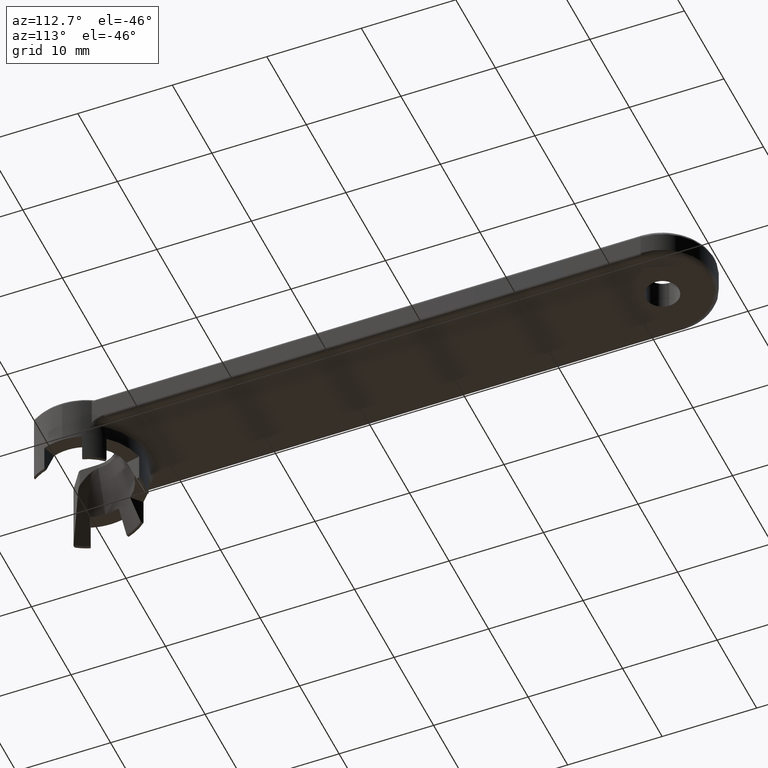
[diagram: clean part render]
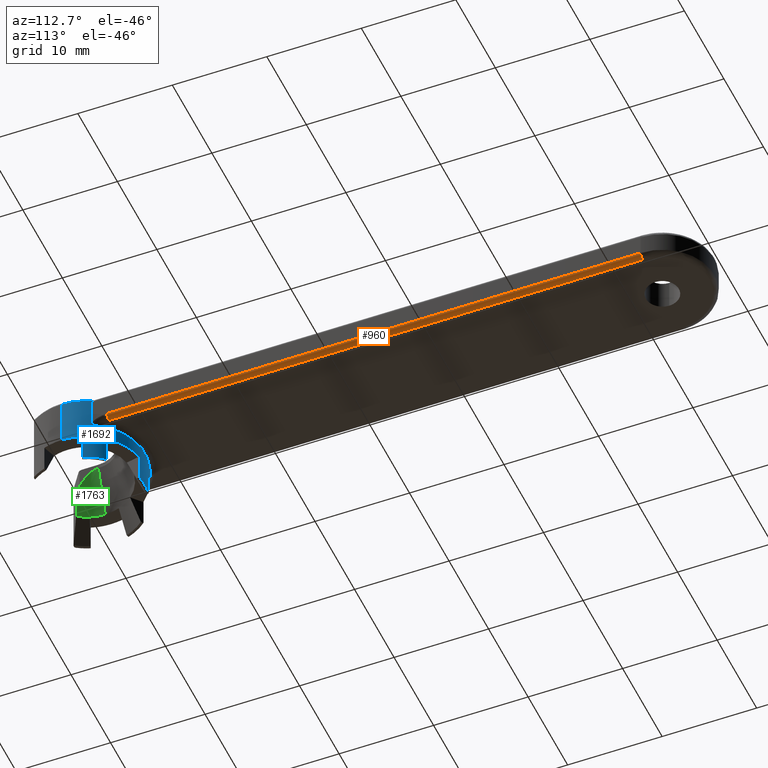
[diagram: same view with three faces highlighted in distinct colors, each labeled with its STEP entity id]
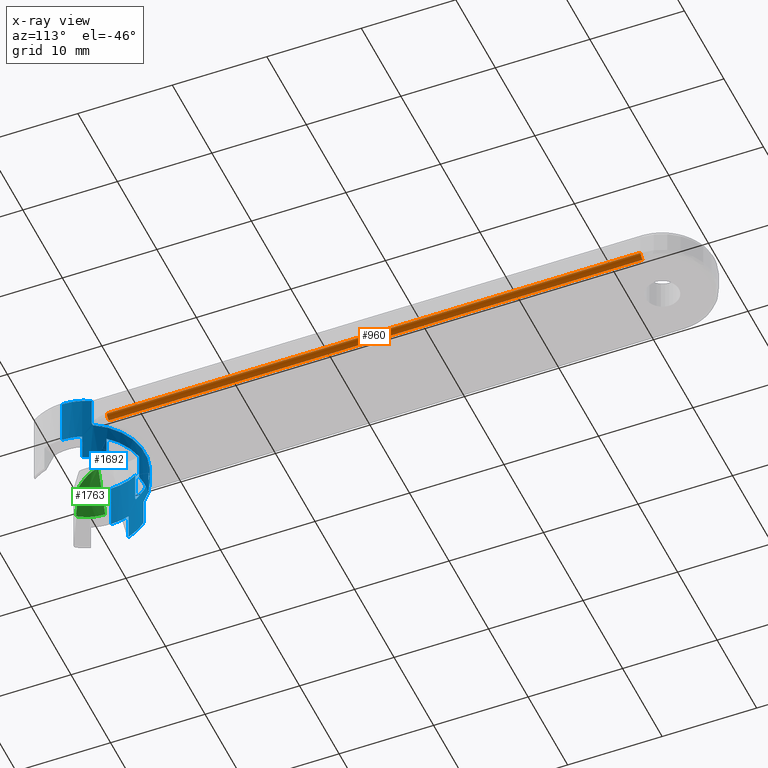
[diagram: x-ray of the same camera — body ghosted, the three highlighted faces saturated]
A machine part, auxiliary view with three faces highlighted in distinct colors.
The next image is the same camera in x-ray (body ghosted, the three faces saturated) — at least one of them is partly hidden behind the body in this view.
Their STEP definitions:

[orange] entity #960 — the highlighted cylindrical surface (edge-blend (fillet) strip) has radius 0.5 mm, axis along (-0, -1, 0).
#144 = LINE ( 'NONE', #1535, #1511 ) ;
#340 = EDGE_CURVE ( 'NONE', #1718, #515, #1353, .T. ) ;
#377 = LINE ( 'NONE', #965, #2223 ) ;
#440 = CIRCLE ( 'NONE', #680, 0.5000000000076151300 ) ;
#471 = EDGE_LOOP ( 'NONE', ( #2197, #1680, #1442, #1510 ) ) ;
#515 = VERTEX_POINT ( 'NONE', #563 ) ;
#522 = DIRECTION ( 'NONE',  ( -1.030765905720560100E-010, -0.9999999999999920100, -1.267852253730563900E-007 ) ) ;
#524 = AXIS2_PLACEMENT_3D ( 'NONE', #2038, #718, #1784 ) ;
#563 = CARTESIAN_POINT ( 'NONE',  ( 5.000000000201823400, 60.94382610750119500, -3.200000000066548300 ) ) ;
#631 = AXIS2_PLACEMENT_3D ( 'NONE', #1528, #1010, #1890 ) ;
#661 = DIRECTION ( 'NONE',  ( 0.0000000000000000000, 1.000000000000000000, 0.0000000000000000000 ) ) ;
#680 = AXIS2_PLACEMENT_3D ( 'NONE', #1589, #522, #1775 ) ;
#707 = EDGE_CURVE ( 'NONE', #1938, #515, #377, .T. ) ;
#718 = DIRECTION ( 'NONE',  ( -6.938893903907228400E-015, -1.000000000000000000, 0.0000000000000000000 ) ) ;
#790 = CARTESIAN_POINT ( 'NONE',  ( 5.500000000000000000, 60.94382609499999100, -2.700000000405793800 ) ) ;
#960 = ADVANCED_FACE ( 'NONE', ( #1355 ), #2187, .T. ) ;
#962 = CARTESIAN_POINT ( 'NONE',  ( 5.000000023561114800, 4.459820554860453300, -3.199999999912545200 ) ) ;
#965 = CARTESIAN_POINT ( 'NONE',  ( 5.000000000000000000, 35.20182335899998800, -3.200000000000000200 ) ) ;
#1010 = DIRECTION ( 'NONE',  ( -0.0000000000000000000, 1.000000000000000000, -0.0000000000000000000 ) ) ;
#1353 = CIRCLE ( 'NONE', #631, 0.5000000000000000000 ) ;
#1355 = FACE_OUTER_BOUND ( 'NONE', #471, .T. ) ;
#1442 = ORIENTED_EDGE ( 'NONE', *, *, #707, .T. ) ;
#1510 = ORIENTED_EDGE ( 'NONE', *, *, #340, .F. ) ;
#1511 = VECTOR ( 'NONE', #661, 1000.000000000000000 ) ;
#1528 = CARTESIAN_POINT ( 'NONE',  ( 5.000000000000000000, 60.94382609499999100, -2.700000000000000200 ) ) ;
#1535 = CARTESIAN_POINT ( 'NONE',  ( 5.500000000000000000, 31.90282184949999700, -2.700000000541058500 ) ) ;
#1551 = EDGE_CURVE ( 'NONE', #1938, #1684, #440, .T. ) ;
#1589 = CARTESIAN_POINT ( 'NONE',  ( 4.999999999983588200, 4.459820337675675500, -2.700000000000043300 ) ) ;
#1680 = ORIENTED_EDGE ( 'NONE', *, *, #1551, .F. ) ;
#1684 = VERTEX_POINT ( 'NONE', #1845 ) ;
#1718 = VERTEX_POINT ( 'NONE', #790 ) ;
#1725 = EDGE_CURVE ( 'NONE', #1684, #1718, #144, .T. ) ;
#1775 = DIRECTION ( 'NONE',  ( 0.0000000000000000000, 1.267852246780839900E-007, -0.9999999999999920100 ) ) ;
#1784 = DIRECTION ( 'NONE',  ( 1.000000000000000000, -1.387778780781446900E-014, 0.0000000000000000000 ) ) ;
#1840 = DIRECTION ( 'NONE',  ( 0.0000000000000000000, 1.000000000000000000, 0.0000000000000000000 ) ) ;
#1845 = CARTESIAN_POINT ( 'NONE',  ( 5.499999999997800000, 4.459820490492979200, -2.700000000270550900 ) ) ;
#1890 = DIRECTION ( 'NONE',  ( 1.734723475976807100E-015, 0.0000000000000000000, -1.000000000000000000 ) ) ;
#1938 = VERTEX_POINT ( 'NONE', #962 ) ;
#2038 = CARTESIAN_POINT ( 'NONE',  ( 5.000000000000000000, 60.94382609499999100, -2.700000000000000200 ) ) ;
#2187 = CYLINDRICAL_SURFACE ( 'NONE', #524, 0.4999999999999995600 ) ;
#2197 = ORIENTED_EDGE ( 'NONE', *, *, #1725, .F. ) ;
#2223 = VECTOR ( 'NONE', #1840, 1000.000000000000000 ) ;

[blue] entity #1692 — the highlighted cylindrical surface (partial cylindrical patch) has radius 6.2 mm, axis along (0, -0, 1).
#3 = VECTOR ( 'NONE', #351, 1000.000000000000000 ) ;
#5 = CARTESIAN_POINT ( 'NONE',  ( -5.867826876618650500, 2.002150780044259700, -8.199999999999999300 ) ) ;
#14 = CARTESIAN_POINT ( 'NONE',  ( 5.446663142184594800, 2.962128852904959900, -3.683700694709912200 ) ) ;
#22 = ORIENTED_EDGE ( 'NONE', *, *, #883, .F. ) ;
#26 = DIRECTION ( 'NONE',  ( 1.000000000000000000, 0.0000000000000000000, 0.0000000000000000000 ) ) ;
#30 = CARTESIAN_POINT ( 'NONE',  ( -5.500000000627586900, 2.861817603889728300, -0.4244531496748381600 ) ) ;
#43 = CARTESIAN_POINT ( 'NONE',  ( -1.200000001460044500, 6.082762530010184900, -8.199999999999999300 ) ) ;
#44 = CARTESIAN_POINT ( 'NONE',  ( -5.438596824998390900, 2.976855604779078800, -3.700000077557491300 ) ) ;
#50 = CARTESIAN_POINT ( 'NONE',  ( -6.200000000000001100, 7.592810154713590800E-016, -8.199999999999999300 ) ) ;
#55 = AXIS2_PLACEMENT_3D ( 'NONE', #601, #1847, #784 ) ;
#56 = CARTESIAN_POINT ( 'NONE',  ( -5.458067962721095500, 2.941017725381117800, -3.654296403955475300 ) ) ;
#81 = CARTESIAN_POINT ( 'NONE',  ( 1.204458524986711500, 6.081881260069686800, -4.249999999999999100 ) ) ;
#82 = EDGE_CURVE ( 'NONE', #922, #1838, #1689, .T. ) ;
#85 = CARTESIAN_POINT ( 'NONE',  ( 4.667826877783794800, 4.080611748137672900, -4.249999999999999100 ) ) ;
#110 = CARTESIAN_POINT ( 'NONE',  ( -5.495980475650266200, 2.869604164179492900, -3.481033230296161700 ) ) ;
#121 = CARTESIAN_POINT ( 'NONE',  ( 5.494223422560828000, 2.872992808981826400, -3.479741586261986700 ) ) ;
#127 = ORIENTED_EDGE ( 'NONE', *, *, #1484, .F. ) ;
#150 = CARTESIAN_POINT ( 'NONE',  ( 5.438596824754166700, 2.976855605225269500, -3.700000077557490800 ) ) ;
#166 = CARTESIAN_POINT ( 'NONE',  ( 0.0000000000000000000, 0.0000000000000000000, -3.700000001299996700 ) ) ;
#193 = B_SPLINE_CURVE_WITH_KNOTS ( 'NONE', 3,
 ( #1513, #1266, #1494, #1854 ),
 .UNSPECIFIED., .F., .F.,
 ( 4, 4 ),
 ( 1.626303258728256700E-019, 0.0002237948777926737600 ),
 .UNSPECIFIED. ) ;
#198 = LINE ( 'NONE', #50, #1925 ) ;
#204 = ORIENTED_EDGE ( 'NONE', *, *, #881, .F. ) ;
#214 = AXIS2_PLACEMENT_3D ( 'NONE', #166, #1767, #840 ) ;
#223 = CARTESIAN_POINT ( 'NONE',  ( 5.484822456379121500, 2.890818314135780800, -3.548926660602370400 ) ) ;
#235 = AXIS2_PLACEMENT_3D ( 'NONE', #1851, #789, #2034 ) ;
#244 = VERTEX_POINT ( 'NONE', #894 ) ;
#249 = EDGE_CURVE ( 'NONE', #1647, #1398, #1032, .T. ) ;
#251 = CARTESIAN_POINT ( 'NONE',  ( -5.464439879632300800, 2.929148316300492100, -3.634817122630300500 ) ) ;
#258 = LINE ( 'NONE', #1736, #316 ) ;
#261 = CARTESIAN_POINT ( 'NONE',  ( -5.458257569519413500, 2.940650316093169200, -0.2999999999853709100 ) ) ;
#286 = DIRECTION ( 'NONE',  ( -0.0000000000000000000, -0.0000000000000000000, -1.000000000000000000 ) ) ;
#295 = DIRECTION ( 'NONE',  ( 0.0000000000000000000, -0.0000000000000000000, 1.000000000000000000 ) ) ;
#301 = VECTOR ( 'NONE', #286, 1000.000000000000000 ) ;
#306 = CARTESIAN_POINT ( 'NONE',  ( -5.500000012472471900, 2.861817518264829100, -3.355874765797170600 ) ) ;
#316 = VECTOR ( 'NONE', #2076, 1000.000000000000000 ) ;
#324 = FACE_OUTER_BOUND ( 'NONE', #2213, .T. ) ;
#328 = CARTESIAN_POINT ( 'NONE',  ( 5.438596824754166700, 2.976855605225269500, -3.700000077557490800 ) ) ;
#339 = CARTESIAN_POINT ( 'NONE',  ( 0.0000000000000000000, 0.0000000000000000000, -8.199999999999999300 ) ) ;
#341 = B_SPLINE_CURVE_WITH_KNOTS ( 'NONE', 3,
 ( #1325, #2035, #2220, #1146, #56, #1335, #251, #1493, #434, #1683, #618, #1860, #801, #2044, #974, #2227, #1798, #2261, #1194, #110, #1373, #306 ),
 .UNSPECIFIED., .F., .F.,
 ( 4, 2, 1, 1, 2, 2, 2, 2, 2, 2, 2, 4 ),
 ( 0.0000000000000000000, 0.1250000000000123800, 0.1875000000000185700, 0.2187500000000217300, 0.2343750000000237000, 0.2500000000000257000, 0.3750000000000487400, 0.4375000000000584500, 0.4687500000000656100, 0.4843750000000666700, 0.5000000000000677200, 1.000000000000000000 ),
 .UNSPECIFIED. ) ;
#351 = DIRECTION ( 'NONE',  ( 0.0000000000000000000, -0.0000000000000000000, 1.000000000000000000 ) ) ;
#355 = CARTESIAN_POINT ( 'NONE',  ( 5.488181449824928400, 2.884431366621080400, -3.527901887081717400 ) ) ;
#357 = CIRCLE ( 'NONE', #728, 6.200000000000001100 ) ;
#363 = VERTEX_POINT ( 'NONE', #44 ) ;
#397 = CARTESIAN_POINT ( 'NONE',  ( -5.458257569519413500, 2.940650316093169200, -0.2999999999853709100 ) ) ;
#418 = CARTESIAN_POINT ( 'NONE',  ( 6.200000000000001100, 0.0000000000000000000, -5.299999996799996000 ) ) ;
#421 = CARTESIAN_POINT ( 'NONE',  ( 5.487305621784258800, 2.886093118243211000, -3.533580546174660300 ) ) ;
#422 = EDGE_CURVE ( 'NONE', #1437, #2150, #1295, .T. ) ;
#434 = CARTESIAN_POINT ( 'NONE',  ( -5.466651455191114700, 2.925017363728185800, -3.627527874178686900 ) ) ;
#439 = VERTEX_POINT ( 'NONE', #2024 ) ;
#442 = ORIENTED_EDGE ( 'NONE', *, *, #82, .F. ) ;
#446 = VERTEX_POINT ( 'NONE', #43 ) ;
#465 = VERTEX_POINT ( 'NONE', #1304 ) ;
#482 = EDGE_CURVE ( 'NONE', #2104, #668, #1582, .T. ) ;
#487 = VECTOR ( 'NONE', #1354, 1000.000000000000000 ) ;
#494 = CARTESIAN_POINT ( 'NONE',  ( -5.482388570104171200, 2.895859813746928200, -0.3552910690242768700 ) ) ;
#512 = DIRECTION ( 'NONE',  ( 1.000000000000000000, 2.664535259100375300E-015, 0.0000000000000000000 ) ) ;
#541 = DIRECTION ( 'NONE',  ( -0.0000000000000000000, 0.0000000000000000000, -1.000000000000000000 ) ) ;
#548 = ORIENTED_EDGE ( 'NONE', *, *, #2061, .F. ) ;
#554 = CARTESIAN_POINT ( 'NONE',  ( 5.490108557049514300, 2.880780272098853300, -3.514555178823737700 ) ) ;
#592 = LINE ( 'NONE', #2254, #1013 ) ;
#599 = EDGE_CURVE ( 'NONE', #1838, #363, #1066, .T. ) ;
#600 = EDGE_CURVE ( 'NONE', #1500, #446, #592, .T. ) ;
#601 = CARTESIAN_POINT ( 'NONE',  ( 0.0000000000000000000, 0.0000000000000000000, -5.299999996799996000 ) ) ;
#612 = CARTESIAN_POINT ( 'NONE',  ( 0.0000000000000000000, 0.0000000000000000000, -5.299999996799996000 ) ) ;
#618 = CARTESIAN_POINT ( 'NONE',  ( -5.473477680049049000, 2.912232388227616200, -3.603474416766844400 ) ) ;
#624 = ORIENTED_EDGE ( 'NONE', *, *, #1212, .F. ) ;
#627 = DIRECTION ( 'NONE',  ( 0.0000000000000000000, 0.0000000000000000000, 1.000000000000000000 ) ) ;
#628 = VECTOR ( 'NONE', #1896, 1000.000000000000000 ) ;
#639 = ORIENTED_EDGE ( 'NONE', *, *, #482, .F. ) ;
#668 = VERTEX_POINT ( 'NONE', #1478 ) ;
#687 = DIRECTION ( 'NONE',  ( 1.000000000000000000, 0.0000000000000000000, 0.0000000000000000000 ) ) ;
#689 = ORIENTED_EDGE ( 'NONE', *, *, #780, .F. ) ;
#695 = CARTESIAN_POINT ( 'NONE',  ( -1.200000002161752300, 6.082762529871752500, -5.299999998399997900 ) ) ;
#711 = CIRCLE ( 'NONE', #1799, 6.200000000000001100 ) ;
#728 = AXIS2_PLACEMENT_3D ( 'NONE', #949, #1657, #1826 ) ;
#744 = DIRECTION ( 'NONE',  ( 0.0000000000000000000, 0.0000000000000000000, 1.000000000000000000 ) ) ;
#750 = CARTESIAN_POINT ( 'NONE',  ( 5.491564379460681900, 2.878027034295398400, -3.502981858993868600 ) ) ;
#762 = AXIS2_PLACEMENT_3D ( 'NONE', #1665, #783, #26 ) ;
#772 = ORIENTED_EDGE ( 'NONE', *, *, #249, .F. ) ;
#773 = ORIENTED_EDGE ( 'NONE', *, *, #2052, .F. ) ;
#779 = CARTESIAN_POINT ( 'NONE',  ( 5.486187956886715800, 2.888215648796562900, -3.540572984508446400 ) ) ;
#780 = EDGE_CURVE ( 'NONE', #957, #1592, #258, .T. ) ;
#783 = DIRECTION ( 'NONE',  ( 0.0000000000000000000, -0.0000000000000000000, 1.000000000000000000 ) ) ;
#784 = DIRECTION ( 'NONE',  ( 1.000000000000000000, 0.0000000000000000000, 0.0000000000000000000 ) ) ;
#787 = VERTEX_POINT ( 'NONE', #1176 ) ;
#789 = DIRECTION ( 'NONE',  ( -0.0000000000000000000, 0.0000000000000000000, -1.000000000000000000 ) ) ;
#792 = DIRECTION ( 'NONE',  ( 1.000000000000000000, 4.440892098500626200E-015, 0.0000000000000000000 ) ) ;
#801 = CARTESIAN_POINT ( 'NONE',  ( -5.482130067299333800, 2.895923203933902900, -3.563600576749951500 ) ) ;
#814 = ORIENTED_EDGE ( 'NONE', *, *, #422, .F. ) ;
#837 = CARTESIAN_POINT ( 'NONE',  ( 5.486710529528606300, 2.887222837744079800, -3.537356234932907700 ) ) ;
#840 = DIRECTION ( 'NONE',  ( 1.000000000000000000, 0.0000000000000000000, -2.098455817713879100E-016 ) ) ;
#867 = EDGE_CURVE ( 'NONE', #2323, #2175, #198, .T. ) ;
#881 = EDGE_CURVE ( 'NONE', #439, #922, #989, .T. ) ;
#883 = EDGE_CURVE ( 'NONE', #2150, #1500, #1040, .T. ) ;
#893 = CARTESIAN_POINT ( 'NONE',  ( 1.204458524752663400, 6.081881260116038100, -5.299999998399997900 ) ) ;
#894 = CARTESIAN_POINT ( 'NONE',  ( -5.867826876440343400, 2.002150780566834600, -5.299999998399997000 ) ) ;
#895 = VERTEX_POINT ( 'NONE', #1875 ) ;
#908 = CARTESIAN_POINT ( 'NONE',  ( 5.468868043408419600, 2.920867857781020800, -3.619874022931752800 ) ) ;
#916 = AXIS2_PLACEMENT_3D ( 'NONE', #612, #1853, #792 ) ;
#922 = VERTEX_POINT ( 'NONE', #1248 ) ;
#930 = AXIS2_PLACEMENT_3D ( 'NONE', #1606, #541, #1792 ) ;
#941 = CARTESIAN_POINT ( 'NONE',  ( -5.499999999479540800, 2.861817605251085500, -0.5000000000961724000 ) ) ;
#949 = CARTESIAN_POINT ( 'NONE',  ( 0.0000000000000000000, 0.0000000000000000000, -8.199999999999999300 ) ) ;
#955 = ORIENTED_EDGE ( 'NONE', *, *, #1568, .F. ) ;
#957 = VERTEX_POINT ( 'NONE', #1696 ) ;
#970 = LINE ( 'NONE', #81, #487 ) ;
#974 = CARTESIAN_POINT ( 'NONE',  ( -5.485048955379159700, 2.890386072491822200, -3.547357963101453100 ) ) ;
#985 = EDGE_CURVE ( 'NONE', #668, #439, #193, .T. ) ;
#989 = LINE ( 'NONE', #2311, #628 ) ;
#995 = LINE ( 'NONE', #1416, #3 ) ;
#1002 = CARTESIAN_POINT ( 'NONE',  ( 4.667826876512159600, 4.080611749592301300, -5.299999998399997900 ) ) ;
#1013 = VECTOR ( 'NONE', #1415, 1000.000000000000000 ) ;
#1026 = CARTESIAN_POINT ( 'NONE',  ( 5.499023911476599300, 2.863801596161646300, -3.417238244085430300 ) ) ;
#1028 = CARTESIAN_POINT ( 'NONE',  ( -5.499999998959083300, 2.861817606251330700, -4.249999999999998200 ) ) ;
#1032 = B_SPLINE_CURVE_WITH_KNOTS ( 'NONE', 3,
 ( #1920, #30, #494, #397 ),
 .UNSPECIFIED., .F., .F.,
 ( 4, 4 ),
 ( 1.668039366483104300E-012, 0.0002231111756806191500 ),
 .UNSPECIFIED. ) ;
#1040 = CIRCLE ( 'NONE', #1653, 6.200000000000001100 ) ;
#1047 = CARTESIAN_POINT ( 'NONE',  ( 5.456688068316057500, 2.943650829591891500, -3.661388965727120100 ) ) ;
#1060 = VERTEX_POINT ( 'NONE', #5 ) ;
#1066 = CIRCLE ( 'NONE', #214, 6.200000000000001100 ) ;
#1078 = CIRCLE ( 'NONE', #235, 6.200000000000001100 ) ;
#1087 = VERTEX_POINT ( 'NONE', #1002 ) ;
#1089 = EDGE_CURVE ( 'NONE', #1087, #895, #1951, .T. ) ;
#1123 = ORIENTED_EDGE ( 'NONE', *, *, #600, .F. ) ;
#1136 = CARTESIAN_POINT ( 'NONE',  ( 5.479091132325749800, 2.901662027818583000, -3.578592382733767300 ) ) ;
#1144 = CIRCLE ( 'NONE', #55, 6.200000000000001100 ) ;
#1146 = CARTESIAN_POINT ( 'NONE',  ( -5.454358873983141900, 2.947892475933232300, -3.664170849005711900 ) ) ;
#1176 = CARTESIAN_POINT ( 'NONE',  ( -5.500000012472471900, 2.861817518264829100, -3.355874765797170600 ) ) ;
#1194 = CARTESIAN_POINT ( 'NONE',  ( -5.485793711787386500, 2.888965117706964000, -3.542969547002110100 ) ) ;
#1203 = VERTEX_POINT ( 'NONE', #418 ) ;
#1212 = EDGE_CURVE ( 'NONE', #895, #957, #357, .T. ) ;
#1215 = CIRCLE ( 'NONE', #916, 6.200000000000001100 ) ;
#1224 = ORIENTED_EDGE ( 'NONE', *, *, #1395, .F. ) ;
#1232 = ORIENTED_EDGE ( 'NONE', *, *, #1486, .F. ) ;
#1246 = EDGE_CURVE ( 'NONE', #244, #1060, #1311, .T. ) ;
#1248 = CARTESIAN_POINT ( 'NONE',  ( 5.500000012810048100, 2.861817517616057000, -3.355874765797169700 ) ) ;
#1254 = CARTESIAN_POINT ( 'NONE',  ( 5.468483984980382600, 2.921587701305086600, -3.621225984675160900 ) ) ;
#1264 = CARTESIAN_POINT ( 'NONE',  ( 5.869292936053762200, 1.997848950944342900, -5.299999998399997900 ) ) ;
#1266 = CARTESIAN_POINT ( 'NONE',  ( 5.482401354195084200, 2.895836084587775100, -0.3553203631555149600 ) ) ;
#1279 = VERTEX_POINT ( 'NONE', #893 ) ;
#1295 = LINE ( 'NONE', #1401, #2186 ) ;
#1304 = CARTESIAN_POINT ( 'NONE',  ( 1.204458524518615200, 6.081881260162388600, -8.199999999999999300 ) ) ;
#1311 = LINE ( 'NONE', #1837, #301 ) ;
#1312 = CARTESIAN_POINT ( 'NONE',  ( 5.470047338893147400, 2.918657050268169700, -3.615660253341842700 ) ) ;
#1314 = DIRECTION ( 'NONE',  ( 0.0000000000000000000, 0.0000000000000000000, 1.000000000000000000 ) ) ;
#1325 = CARTESIAN_POINT ( 'NONE',  ( -5.438596824998390900, 2.976855604779078800, -3.700000077557491300 ) ) ;
#1331 = ORIENTED_EDGE ( 'NONE', *, *, #1946, .F. ) ;
#1335 = CARTESIAN_POINT ( 'NONE',  ( -5.462515603773685100, 2.932738227366441300, -3.640956357992495700 ) ) ;
#1348 = CARTESIAN_POINT ( 'NONE',  ( 5.500000012810048100, 2.861817517616057000, -3.355874765797169700 ) ) ;
#1354 = DIRECTION ( 'NONE',  ( 0.0000000000000000000, 0.0000000000000000000, 1.000000000000000000 ) ) ;
#1362 = DIRECTION ( 'NONE',  ( -0.0000000000000000000, -0.0000000000000000000, -1.000000000000000000 ) ) ;
#1363 = EDGE_CURVE ( 'NONE', #787, #1647, #1537, .T. ) ;
#1373 = CARTESIAN_POINT ( 'NONE',  ( -5.499999776576213000, 2.861817718782271800, -3.416181547061320200 ) ) ;
#1390 = CARTESIAN_POINT ( 'NONE',  ( 0.0000000000000000000, 0.0000000000000000000, -5.299999996799996000 ) ) ;
#1395 = EDGE_CURVE ( 'NONE', #1398, #2175, #711, .T. ) ;
#1398 = VERTEX_POINT ( 'NONE', #261 ) ;
#1401 = CARTESIAN_POINT ( 'NONE',  ( -4.664834410724592900, 4.084032311395166200, -4.249999999999999100 ) ) ;
#1415 = DIRECTION ( 'NONE',  ( -0.0000000000000000000, -0.0000000000000000000, -1.000000000000000000 ) ) ;
#1416 = CARTESIAN_POINT ( 'NONE',  ( 6.200000000000001100, 0.0000000000000000000, -8.199999999999999300 ) ) ;
#1437 = VERTEX_POINT ( 'NONE', #2242 ) ;
#1450 = CARTESIAN_POINT ( 'NONE',  ( 5.473431131074816500, 2.912307760209816600, -3.602905528504545700 ) ) ;
#1475 = VECTOR ( 'NONE', #1362, 1000.000000000000000 ) ;
#1478 = CARTESIAN_POINT ( 'NONE',  ( 5.458257577772662300, 2.940650305705030400, -0.2999999997667480700 ) ) ;
#1484 = EDGE_CURVE ( 'NONE', #465, #1279, #970, .T. ) ;
#1486 = EDGE_CURVE ( 'NONE', #446, #465, #1963, .T. ) ;
#1493 = CARTESIAN_POINT ( 'NONE',  ( -5.465725826564651300, 2.926747379280520500, -3.630626976416180300 ) ) ;
#1494 = CARTESIAN_POINT ( 'NONE',  ( 5.500000000131930000, 2.861817603997288500, -0.4243257452622119500 ) ) ;
#1500 = VERTEX_POINT ( 'NONE', #695 ) ;
#1501 = CARTESIAN_POINT ( 'NONE',  ( 6.200000000000001100, 0.0000000000000000000, -0.3000000000000016500 ) ) ;
#1513 = CARTESIAN_POINT ( 'NONE',  ( 5.458257577772662300, 2.940650305705030400, -0.2999999997667480700 ) ) ;
#1537 = LINE ( 'NONE', #1028, #2028 ) ;
#1542 = ORIENTED_EDGE ( 'NONE', *, *, #599, .F. ) ;
#1548 = ORIENTED_EDGE ( 'NONE', *, *, #1246, .F. ) ;
#1553 = CARTESIAN_POINT ( 'NONE',  ( 5.481603314414857500, 2.896916286137348100, -3.566323920687017900 ) ) ;
#1560 = ORIENTED_EDGE ( 'NONE', *, *, #2179, .F. ) ;
#1568 = EDGE_CURVE ( 'NONE', #1060, #1437, #2232, .T. ) ;
#1574 = DIRECTION ( 'NONE',  ( -0.0000000000000000000, 0.0000000000000000000, -1.000000000000000000 ) ) ;
#1582 = CIRCLE ( 'NONE', #2290, 6.200000000000001100 ) ;
#1583 = CARTESIAN_POINT ( 'NONE',  ( -6.200000000147984000, -1.271641256795053100E-009, -0.2999999998555727400 ) ) ;
#1592 = VERTEX_POINT ( 'NONE', #1264 ) ;
#1606 = CARTESIAN_POINT ( 'NONE',  ( 0.0000000000000000000, 0.0000000000000000000, -8.199999999999999300 ) ) ;
#1610 = CARTESIAN_POINT ( 'NONE',  ( -6.200000000000001100, 7.592810154713590800E-016, -5.299999996799996000 ) ) ;
#1633 = DIRECTION ( 'NONE',  ( 1.000000000000000000, 0.0000000000000000000, 2.623069772142349100E-016 ) ) ;
#1647 = VERTEX_POINT ( 'NONE', #941 ) ;
#1653 = AXIS2_PLACEMENT_3D ( 'NONE', #1390, #1712, #687 ) ;
#1657 = DIRECTION ( 'NONE',  ( -0.0000000000000000000, 0.0000000000000000000, -1.000000000000000000 ) ) ;
#1665 = CARTESIAN_POINT ( 'NONE',  ( 0.0000000000000000000, 0.0000000000000000000, -8.199999999999999300 ) ) ;
#1683 = CARTESIAN_POINT ( 'NONE',  ( -5.469931752988374600, 2.918882751353777800, -3.616378775568605400 ) ) ;
#1689 = B_SPLINE_CURVE_WITH_KNOTS ( 'NONE', 3,
 ( #1348, #2300, #1026, #1774, #121, #750, #554, #355, #421, #837, #779, #1735, #223, #1553, #1136, #2085, #1450, #2137, #1312, #908, #1254, #1829, #1790, #1047, #14, #328 ),
 .UNSPECIFIED., .F., .F.,
 ( 4, 2, 2, 1, 1, 2, 2, 2, 2, 2, 2, 2, 2, 4 ),
 ( 0.0000000000000000000, 0.2499999999999275000, 0.3749999999998898100, 0.4374999999998706000, 0.4687499999998588900, 0.4843749999998542300, 0.4999999999998495100, 0.5624999999998707700, 0.6249999999998919800, 0.6874999999999131800, 0.7187499999999238400, 0.7343749999999291700, 0.7499999999999345000, 1.000000000000000000 ),
 .UNSPECIFIED. ) ;
#1692 = ADVANCED_FACE ( 'NONE', ( #324 ), #1993, .T. ) ;
#1693 = CARTESIAN_POINT ( 'NONE',  ( 0.0000000000000000000, 0.0000000000000000000, -0.3000000000000016500 ) ) ;
#1696 = CARTESIAN_POINT ( 'NONE',  ( 5.869292936076323700, 1.997848950878064600, -8.199999999999999300 ) ) ;
#1702 = ORIENTED_EDGE ( 'NONE', *, *, #985, .F. ) ;
#1712 = DIRECTION ( 'NONE',  ( -0.0000000000000000000, 0.0000000000000000000, -1.000000000000000000 ) ) ;
#1717 = EDGE_CURVE ( 'NONE', #363, #787, #341, .T. ) ;
#1735 = CARTESIAN_POINT ( 'NONE',  ( 5.485741016871843500, 2.889065161113336000, -3.543289814648639800 ) ) ;
#1736 = CARTESIAN_POINT ( 'NONE',  ( 5.869292936121444100, 1.997848950745507500, -4.249999999999999100 ) ) ;
#1767 = DIRECTION ( 'NONE',  ( 0.0000000000000000000, 0.0000000000000000000, 1.000000000000000000 ) ) ;
#1770 = CARTESIAN_POINT ( 'NONE',  ( -4.664834411035808900, 4.084032311039690600, -5.299999998399997900 ) ) ;
#1774 = CARTESIAN_POINT ( 'NONE',  ( 5.495658978055909700, 2.870260911711882000, -3.464114675599912800 ) ) ;
#1790 = CARTESIAN_POINT ( 'NONE',  ( 5.467661419606932900, 2.923128724268055000, -3.624094659928186700 ) ) ;
#1792 = DIRECTION ( 'NONE',  ( 1.000000000000000000, 0.0000000000000000000, 0.0000000000000000000 ) ) ;
#1798 = CARTESIAN_POINT ( 'NONE',  ( -5.485796096659401900, 2.888962501828358200, -3.542939459701037300 ) ) ;
#1799 = AXIS2_PLACEMENT_3D ( 'NONE', #1693, #627, #1868 ) ;
#1814 = CARTESIAN_POINT ( 'NONE',  ( 0.0000000000000000000, 0.0000000000000000000, -0.3000000000000016500 ) ) ;
#1826 = DIRECTION ( 'NONE',  ( 1.000000000000000000, 1.065814103640150100E-014, 0.0000000000000000000 ) ) ;
#1829 = CARTESIAN_POINT ( 'NONE',  ( 5.467735193914544200, 2.922990194482716100, -3.623830794815376500 ) ) ;
#1837 = CARTESIAN_POINT ( 'NONE',  ( -5.867826876975263900, 2.002150778999108600, -4.249999999999999100 ) ) ;
#1838 = VERTEX_POINT ( 'NONE', #150 ) ;
#1847 = DIRECTION ( 'NONE',  ( -0.0000000000000000000, 0.0000000000000000000, -1.000000000000000000 ) ) ;
#1851 = CARTESIAN_POINT ( 'NONE',  ( 0.0000000000000000000, 0.0000000000000000000, -5.299999996799996000 ) ) ;
#1853 = DIRECTION ( 'NONE',  ( -0.0000000000000000000, 0.0000000000000000000, -1.000000000000000000 ) ) ;
#1854 = CARTESIAN_POINT ( 'NONE',  ( 5.500000000161539200, 2.861817603629540400, -0.5000000003859050900 ) ) ;
#1857 = ORIENTED_EDGE ( 'NONE', *, *, #1717, .F. ) ;
#1860 = CARTESIAN_POINT ( 'NONE',  ( -5.479245419362367600, 2.901371304436597900, -3.577871771587632900 ) ) ;
#1868 = DIRECTION ( 'NONE',  ( 1.000000000000000000, 0.0000000000000000000, 2.623069772142349100E-016 ) ) ;
#1875 = CARTESIAN_POINT ( 'NONE',  ( 4.667826876936037400, 4.080611749107425200, -8.199999999999999300 ) ) ;
#1896 = DIRECTION ( 'NONE',  ( -0.0000000000000000000, -0.0000000000000000000, -1.000000000000000000 ) ) ;
#1920 = CARTESIAN_POINT ( 'NONE',  ( -5.499999999479540800, 2.861817605251085500, -0.5000000000961724000 ) ) ;
#1925 = VECTOR ( 'NONE', #295, 1000.000000000000000 ) ;
#1946 = EDGE_CURVE ( 'NONE', #1592, #1203, #1078, .T. ) ;
#1951 = LINE ( 'NONE', #85, #1475 ) ;
#1963 = CIRCLE ( 'NONE', #2276, 6.200000000000001100 ) ;
#1993 = CYLINDRICAL_SURFACE ( 'NONE', #762, 6.200000000000001100 ) ;
#2024 = CARTESIAN_POINT ( 'NONE',  ( 5.500000000161539200, 2.861817603629540400, -0.5000000003859050900 ) ) ;
#2028 = VECTOR ( 'NONE', #2272, 1000.000000000000000 ) ;
#2034 = DIRECTION ( 'NONE',  ( 1.000000000000000000, -3.552713678800500900E-015, 0.0000000000000000000 ) ) ;
#2035 = CARTESIAN_POINT ( 'NONE',  ( -5.442629144476024200, 2.969494355065426900, -3.691852624378406700 ) ) ;
#2044 = CARTESIAN_POINT ( 'NONE',  ( -5.484472331691013600, 2.891483018296000300, -3.550711172903489500 ) ) ;
#2052 = EDGE_CURVE ( 'NONE', #2323, #244, #1144, .T. ) ;
#2061 = EDGE_CURVE ( 'NONE', #1279, #1087, #1215, .T. ) ;
#2076 = DIRECTION ( 'NONE',  ( 0.0000000000000000000, 0.0000000000000000000, 1.000000000000000000 ) ) ;
#2085 = CARTESIAN_POINT ( 'NONE',  ( 5.475264840985963700, 2.908864749001201800, -3.595508914538911400 ) ) ;
#2099 = ORIENTED_EDGE ( 'NONE', *, *, #867, .T. ) ;
#2104 = VERTEX_POINT ( 'NONE', #1501 ) ;
#2137 = CARTESIAN_POINT ( 'NONE',  ( 5.470869780311225800, 2.917114385833442700, -3.612641647985467100 ) ) ;
#2150 = VERTEX_POINT ( 'NONE', #1770 ) ;
#2175 = VERTEX_POINT ( 'NONE', #1583 ) ;
#2179 = EDGE_CURVE ( 'NONE', #1203, #2104, #995, .T. ) ;
#2186 = VECTOR ( 'NONE', #1314, 1000.000000000000000 ) ;
#2213 = EDGE_LOOP ( 'NONE', ( #773, #2099, #1224, #772, #2264, #1857, #1542, #442, #204, #1702, #639, #1560, #1331, #689, #624, #2262, #548, #127, #1232, #1123, #22, #814, #955, #1548 ) ) ;
#2220 = CARTESIAN_POINT ( 'NONE',  ( -5.447152993983479500, 2.961204956735080000, -3.682171714963842700 ) ) ;
#2227 = CARTESIAN_POINT ( 'NONE',  ( -5.485643293444391100, 2.889253923852068300, -3.543853926859832800 ) ) ;
#2232 = CIRCLE ( 'NONE', #930, 6.200000000000001100 ) ;
#2242 = CARTESIAN_POINT ( 'NONE',  ( -4.664834411347027500, 4.084032310684214000, -8.199999999999999300 ) ) ;
#2254 = CARTESIAN_POINT ( 'NONE',  ( -1.200000002863460300, 6.082762529733321000, -4.249999999999999100 ) ) ;
#2261 = CARTESIAN_POINT ( 'NONE',  ( -5.486014379395879100, 2.888546162819857400, -3.541627385796707100 ) ) ;
#2262 = ORIENTED_EDGE ( 'NONE', *, *, #1089, .F. ) ;
#2264 = ORIENTED_EDGE ( 'NONE', *, *, #1363, .F. ) ;
#2272 = DIRECTION ( 'NONE',  ( 0.0000000000000000000, 0.0000000000000000000, 1.000000000000000000 ) ) ;
#2276 = AXIS2_PLACEMENT_3D ( 'NONE', #339, #1574, #512 ) ;
#2290 = AXIS2_PLACEMENT_3D ( 'NONE', #1814, #744, #1633 ) ;
#2300 = CARTESIAN_POINT ( 'NONE',  ( 5.499999888287764100, 2.861817602172552100, -3.386026953289091400 ) ) ;
#2311 = CARTESIAN_POINT ( 'NONE',  ( 5.500000000646963400, 2.861817603007467800, -4.249999999999999100 ) ) ;
#2323 = VERTEX_POINT ( 'NONE', #1610 ) ;

[green] entity #1763 — the highlighted conical surface has half-angle 20 deg.
#6 = CARTESIAN_POINT ( 'NONE',  ( -3.000000000000000000, -1.698815392348183000, -1.724241096478805300 ) ) ;
#9 = EDGE_CURVE ( 'NONE', #1559, #1321, #863, .T. ) ;
#38 = ORIENTED_EDGE ( 'NONE', *, *, #1921, .T. ) ;
#83 = FACE_OUTER_BOUND ( 'NONE', #1911, .T. ) ;
#95 = ORIENTED_EDGE ( 'NONE', *, *, #2255, .T. ) ;
#126 = CARTESIAN_POINT ( 'NONE',  ( 0.0000000000000000000, 0.0000000000000000000, -0.4712000000000000100 ) ) ;
#165 = CARTESIAN_POINT ( 'NONE',  ( -3.000000000000000000, -1.944452498898609200, -2.079903467431310800 ) ) ;
#194 = CARTESIAN_POINT ( 'NONE',  ( -3.000000000000000000, -1.944452498898609200, -2.079903467431310800 ) ) ;
#207 = LINE ( 'NONE', #1316, #269 ) ;
#236 = DIRECTION ( 'NONE',  ( -0.2801664995494923500, -0.1961746949641835800, -0.9396926207999581900 ) ) ;
#268 = B_SPLINE_CURVE_WITH_KNOTS ( 'NONE', 3,
 ( #1429, #719, #544, #1793, #730, #1969, #914, #2162, #1092, #6, #1275, #194 ),
 .UNSPECIFIED., .F., .F.,
 ( 4, 2, 2, 2, 2, 4 ),
 ( 1.098967243772341600E-013, 0.0003255109705338433900, 0.0006510219409577899800, 0.001302043881805683300, 0.001953065822653577300, 0.002604087763501471400 ),
 .UNSPECIFIED. ) ;
#269 = VECTOR ( 'NONE', #236, 999.9999999999998900 ) ;
#342 = AXIS2_PLACEMENT_3D ( 'NONE', #591, #2068, #1171 ) ;
#350 = ORIENTED_EDGE ( 'NONE', *, *, #614, .F. ) ;
#367 = DIRECTION ( 'NONE',  ( -1.000000000000000000, 0.0000000000000000000, 0.0000000000000000000 ) ) ;
#438 = CARTESIAN_POINT ( 'NONE',  ( 0.0000000000000000000, 0.0000000000000000000, -5.300000000000082400 ) ) ;
#481 = CARTESIAN_POINT ( 'NONE',  ( -3.000000000021651600, -1.978710043593373500, -2.131096052468648900 ) ) ;
#535 = CARTESIAN_POINT ( 'NONE',  ( -3.064517158314126200, -2.135790362381998700, -2.520232399417182000 ) ) ;
#544 = CARTESIAN_POINT ( 'NONE',  ( -3.000000000000000400, -0.2176155123978608400, -0.5167100762597961500 ) ) ;
#549 = CARTESIAN_POINT ( 'NONE',  ( -3.000000000126087100, -2.693808853088427400E-010, -0.5000000005371281200 ) ) ;
#556 = CARTESIAN_POINT ( 'NONE',  ( -3.127927069066667200, -2.190198112649896200, -2.748793458010642800 ) ) ;
#583 = ORIENTED_EDGE ( 'NONE', *, *, #1669, .T. ) ;
#591 = CARTESIAN_POINT ( 'NONE',  ( 0.0000000000000000000, 0.0000000000000000000, -5.299999999999971400 ) ) ;
#614 = EDGE_CURVE ( 'NONE', #752, #1575, #1950, .T. ) ;
#719 = CARTESIAN_POINT ( 'NONE',  ( -3.000000000086008100, -0.1103597532041461400, -0.5000000007197588100 ) ) ;
#730 = CARTESIAN_POINT ( 'NONE',  ( -2.999999999999999600, -0.5281401647704615500, -0.6228722353210624000 ) ) ;
#752 = VERTEX_POINT ( 'NONE', #1191 ) ;
#774 = CONICAL_SURFACE ( 'NONE', #884, 2.989517657000000400, 0.3490658503577872600 ) ;
#859 = CARTESIAN_POINT ( 'NONE',  ( -4.747057124000029700, -4.262554835224287600E-010, -5.300000000000082400 ) ) ;
#863 = B_SPLINE_CURVE_WITH_KNOTS ( 'NONE', 3,
 ( #1170, #481, #1623, #1412, #2096, #535, #1586, #918 ),
 .UNSPECIFIED., .F., .F.,
 ( 4, 2, 2, 4 ),
 ( 1.916994488067392900E-015, 0.0001816203885799022100, 0.0003632407771578873900, 0.0007264815543138577900 ),
 .UNSPECIFIED. ) ;
#884 = AXIS2_PLACEMENT_3D ( 'NONE', #126, #1211, #2269 ) ;
#914 = CARTESIAN_POINT ( 'NONE',  ( -3.000000000000000000, -0.9832497058633568000, -0.9223212740981702200 ) ) ;
#918 = CARTESIAN_POINT ( 'NONE',  ( -3.127927069066667200, -2.190198112649896200, -2.748793458010642800 ) ) ;
#967 = LINE ( 'NONE', #1315, #1909 ) ;
#1036 = EDGE_CURVE ( 'NONE', #752, #1746, #1182, .T. ) ;
#1092 = CARTESIAN_POINT ( 'NONE',  ( -3.000000000000000900, -1.432816239629297200, -1.386083943624641500 ) ) ;
#1170 = CARTESIAN_POINT ( 'NONE',  ( -3.000000000000000000, -1.944452498898609200, -2.079903467431310800 ) ) ;
#1171 = DIRECTION ( 'NONE',  ( -1.000000000000000000, 0.0000000000000000000, -6.029617214612080900E-015 ) ) ;
#1182 = CIRCLE ( 'NONE', #1601, 4.747057124000030500 ) ;
#1191 = CARTESIAN_POINT ( 'NONE',  ( -4.493849813549449100, -1.529661789998376400, -5.300000000000082400 ) ) ;
#1211 = DIRECTION ( 'NONE',  ( 0.0000000000000000000, 0.0000000000000000000, -1.000000000000000000 ) ) ;
#1275 = CARTESIAN_POINT ( 'NONE',  ( -3.000000000000000000, -1.824056197517257100, -1.899989875931370300 ) ) ;
#1315 = CARTESIAN_POINT ( 'NONE',  ( -3.868287390500000400, -6.946951211962206900E-010, -2.885599999999999700 ) ) ;
#1316 = CARTESIAN_POINT ( 'NONE',  ( -2.448869500063624500, -1.714716884261920500, -0.4712000000000000100 ) ) ;
#1319 = ORIENTED_EDGE ( 'NONE', *, *, #1036, .T. ) ;
#1321 = VERTEX_POINT ( 'NONE', #556 ) ;
#1412 = CARTESIAN_POINT ( 'NONE',  ( -3.020089657941333900, -2.055422984437553800, -2.294489970655599900 ) ) ;
#1429 = CARTESIAN_POINT ( 'NONE',  ( -3.000000000126087100, -2.693808853088427400E-010, -0.5000000005371281200 ) ) ;
#1559 = VERTEX_POINT ( 'NONE', #165 ) ;
#1575 = VERTEX_POINT ( 'NONE', #1968 ) ;
#1586 = CARTESIAN_POINT ( 'NONE',  ( -3.093766590729564800, -2.166278687833236700, -2.634217483964196700 ) ) ;
#1601 = AXIS2_PLACEMENT_3D ( 'NONE', #438, #1861, #367 ) ;
#1623 = CARTESIAN_POINT ( 'NONE',  ( -3.005263897780740200, -2.006055082373129600, -2.184900424069616600 ) ) ;
#1624 = VERTEX_POINT ( 'NONE', #549 ) ;
#1663 = DIRECTION ( 'NONE',  ( 0.3420201432870673700, 6.142245932292193800E-011, 0.9396926207999581900 ) ) ;
#1669 = EDGE_CURVE ( 'NONE', #1321, #1575, #207, .T. ) ;
#1746 = VERTEX_POINT ( 'NONE', #859 ) ;
#1763 = ADVANCED_FACE ( 'NONE', ( #83 ), #774, .F. ) ;
#1793 = CARTESIAN_POINT ( 'NONE',  ( -2.999999999999998700, -0.4269253277856093200, -0.5781331334754048500 ) ) ;
#1861 = DIRECTION ( 'NONE',  ( 0.0000000000000000000, 0.0000000000000000000, -1.000000000000000000 ) ) ;
#1909 = VECTOR ( 'NONE', #1663, 1000.000000000000100 ) ;
#1911 = EDGE_LOOP ( 'NONE', ( #350, #1319, #38, #95, #1942, #583 ) ) ;
#1921 = EDGE_CURVE ( 'NONE', #1746, #1624, #967, .T. ) ;
#1942 = ORIENTED_EDGE ( 'NONE', *, *, #9, .T. ) ;
#1950 = CIRCLE ( 'NONE', #342, 4.747057124000000300 ) ;
#1968 = CARTESIAN_POINT ( 'NONE',  ( -3.888561547422172200, -2.722800108423079700, -5.299999999999971400 ) ) ;
#1969 = CARTESIAN_POINT ( 'NONE',  ( -3.000000000000000400, -0.8122977888651573600, -0.7815799277077399900 ) ) ;
#2068 = DIRECTION ( 'NONE',  ( -0.0000000000000000000, -0.0000000000000000000, 1.000000000000000000 ) ) ;
#2096 = CARTESIAN_POINT ( 'NONE',  ( -3.029957027003560700, -2.077088766319534300, -2.350517085948324000 ) ) ;
#2162 = CARTESIAN_POINT ( 'NONE',  ( -3.000000000000000000, -1.292321692239952500, -1.223448781647841900 ) ) ;
#2255 = EDGE_CURVE ( 'NONE', #1624, #1559, #268, .T. ) ;
#2269 = DIRECTION ( 'NONE',  ( -1.000000000000000000, 0.0000000000000000000, 0.0000000000000000000 ) ) ;